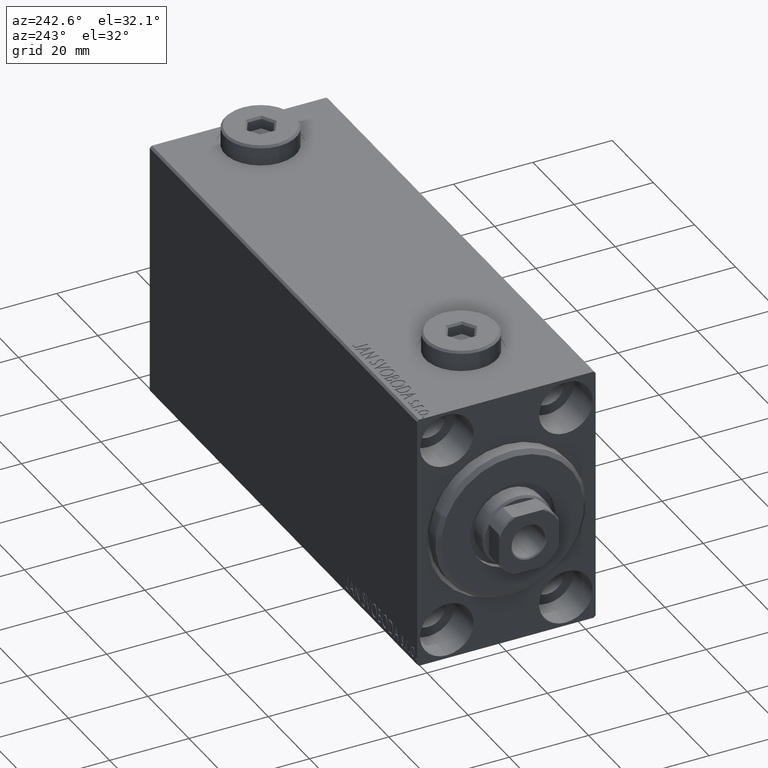
[diagram: clean part render]
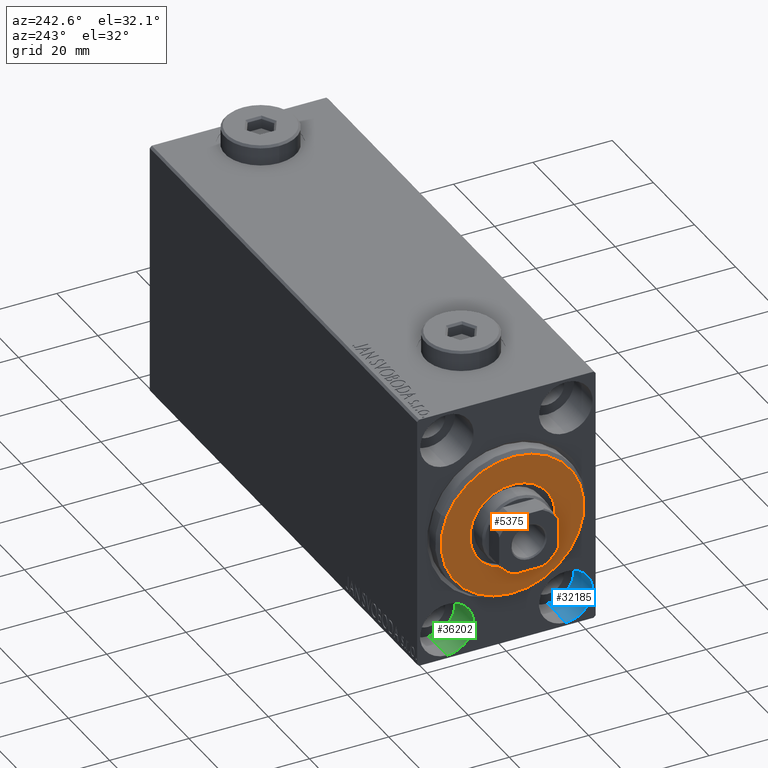
[diagram: same view with three faces highlighted in distinct colors, each labeled with its STEP entity id]
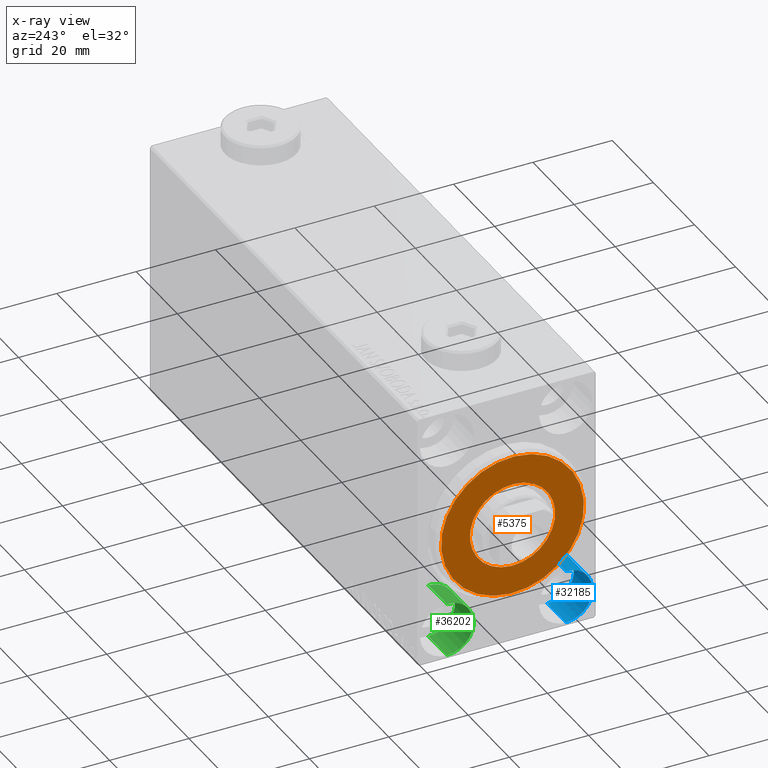
[diagram: x-ray of the same camera — body ghosted, the three highlighted faces saturated]
A machine part, auxiliary view with three faces highlighted in distinct colors.
The next image is the same camera in x-ray (body ghosted, the three faces saturated) — at least one of them is partly hidden behind the body in this view.
Their STEP definitions:

[orange] entity #5375 — the highlighted planar face has unit normal (-1, 0, 0).
#95 = FACE_OUTER_BOUND ( 'NONE', #43795, .T. ) ;
#2303 = AXIS2_PLACEMENT_3D ( 'NONE', #25576, #44238, #33120 ) ;
#2848 = CARTESIAN_POINT ( 'NONE',  ( 3.000000000000000000, 0.000000000000000000, 0.000000000000000000 ) ) ;
#4134 = DIRECTION ( 'NONE',  ( -1.000000000000000000, 0.000000000000000000, -0.000000000000000000 ) ) ;
#4580 = DIRECTION ( 'NONE',  ( 0.000000000000000000, 0.000000000000000000, -1.000000000000000000 ) ) ;
#5006 = ORIENTED_EDGE ( 'NONE', *, *, #8475, .T. ) ;
#5375 = ADVANCED_FACE ( 'NONE', ( #95, #45139 ), #41943, .T. ) ;
#5860 = EDGE_CURVE ( 'NONE', #6107, #22701, #10388, .T. ) ;
#6107 = VERTEX_POINT ( 'NONE', #25377 ) ;
#7115 = CARTESIAN_POINT ( 'NONE',  ( 3.000000000000000000, 0.000000000000000000, 0.000000000000000000 ) ) ;
#7272 = AXIS2_PLACEMENT_3D ( 'NONE', #7115, #4134, #4580 ) ;
#8122 = VERTEX_POINT ( 'NONE', #29784 ) ;
#8475 = EDGE_CURVE ( 'NONE', #8122, #40115, #39647, .T. ) ;
#10329 = CIRCLE ( 'NONE', #2303, 17.99999999999999645 ) ;
#10388 = CIRCLE ( 'NONE', #42494, 10.75000000000000000 ) ;
#12903 = EDGE_CURVE ( 'NONE', #40115, #8122, #10329, .T. ) ;
#14452 = DIRECTION ( 'NONE',  ( -1.000000000000000000, 0.000000000000000000, -0.000000000000000000 ) ) ;
#17377 = ORIENTED_EDGE ( 'NONE', *, *, #5860, .T. ) ;
#18333 = CARTESIAN_POINT ( 'NONE',  ( 3.000000000000000000, 0.000000000000000000, 0.000000000000000000 ) ) ;
#18974 = CARTESIAN_POINT ( 'NONE',  ( 3.000000000000000000, 0.000000000000000000, 0.000000000000000000 ) ) ;
#19204 = DIRECTION ( 'NONE',  ( 0.000000000000000000, 0.000000000000000000, -1.000000000000000000 ) ) ;
#20469 = DIRECTION ( 'NONE',  ( 0.000000000000000000, 0.000000000000000000, -1.000000000000000000 ) ) ;
#20521 = CARTESIAN_POINT ( 'NONE',  ( 3.000000000000000000, 0.000000000000000000, 17.99999999999999645 ) ) ;
#22404 = DIRECTION ( 'NONE',  ( 1.000000000000000000, -0.000000000000000000, 0.000000000000000000 ) ) ;
#22701 = VERTEX_POINT ( 'NONE', #25489 ) ;
#24068 = ORIENTED_EDGE ( 'NONE', *, *, #39622, .T. ) ;
#25377 = CARTESIAN_POINT ( 'NONE',  ( 3.000000000000000000, 0.000000000000000000, 10.75000000000000000 ) ) ;
#25489 = CARTESIAN_POINT ( 'NONE',  ( 3.000000000000000000, 1.316495309083404223E-15, -10.75000000000000000 ) ) ;
#25576 = CARTESIAN_POINT ( 'NONE',  ( 3.000000000000000000, 0.000000000000000000, 0.000000000000000000 ) ) ;
#25792 = AXIS2_PLACEMENT_3D ( 'NONE', #18974, #22404, #19204 ) ;
#28026 = DIRECTION ( 'NONE',  ( 1.000000000000000000, -0.000000000000000000, 0.000000000000000000 ) ) ;
#28635 = DIRECTION ( 'NONE',  ( 0.000000000000000000, 0.000000000000000000, -1.000000000000000000 ) ) ;
#29784 = CARTESIAN_POINT ( 'NONE',  ( 3.000000000000000000, 2.265596578422603002E-15, -17.99999999999999645 ) ) ;
#33120 = DIRECTION ( 'NONE',  ( 0.000000000000000000, 0.000000000000000000, -1.000000000000000000 ) ) ;
#36134 = ORIENTED_EDGE ( 'NONE', *, *, #12903, .T. ) ;
#39431 = EDGE_LOOP ( 'NONE', ( #17377, #24068 ) ) ;
#39622 = EDGE_CURVE ( 'NONE', #22701, #6107, #40140, .T. ) ;
#39647 = CIRCLE ( 'NONE', #25792, 17.99999999999999645 ) ;
#40115 = VERTEX_POINT ( 'NONE', #20521 ) ;
#40140 = CIRCLE ( 'NONE', #7272, 10.75000000000000000 ) ;
#41943 = PLANE ( 'NONE',  #44697 ) ;
#42494 = AXIS2_PLACEMENT_3D ( 'NONE', #18333, #14452, #28635 ) ;
#43795 = EDGE_LOOP ( 'NONE', ( #36134, #5006 ) ) ;
#44238 = DIRECTION ( 'NONE',  ( 1.000000000000000000, -0.000000000000000000, 0.000000000000000000 ) ) ;
#44697 = AXIS2_PLACEMENT_3D ( 'NONE', #2848, #28026, #20469 ) ;
#45139 = FACE_BOUND ( 'NONE', #39431, .T. ) ;

[blue] entity #32185 — the highlighted cylindrical surface (edge-blend (fillet) strip) has radius 6.75 mm, axis along (-1, -0, -0).
#468 = EDGE_CURVE ( 'NONE', #18067, #33244, #19870, .T. ) ;
#680 = VERTEX_POINT ( 'NONE', #20601 ) ;
#1718 = VECTOR ( 'NONE', #40909, 1000.000000000000000 ) ;
#2048 = CARTESIAN_POINT ( 'NONE',  ( 9.000000000000000000, -15.00000000000000355, -25.00000000000000000 ) ) ;
#2432 = EDGE_CURVE ( 'NONE', #680, #17750, #20653, .T. ) ;
#2930 = LINE ( 'NONE', #17343, #1718 ) ;
#5056 = CARTESIAN_POINT ( 'NONE',  ( 9.000000000000000000, -15.00000000000000355, -31.75000000000000000 ) ) ;
#6141 = DIRECTION ( 'NONE',  ( -1.000000000000000000, -0.000000000000000000, -0.000000000000000000 ) ) ;
#7767 = EDGE_LOOP ( 'NONE', ( #22656, #15778, #18682, #24405 ) ) ;
#8011 = CARTESIAN_POINT ( 'NONE',  ( 0.000000000000000000, -15.00000000000000355, -18.25000000000000355 ) ) ;
#10144 = EDGE_CURVE ( 'NONE', #680, #18067, #16031, .T. ) ;
#10286 = CARTESIAN_POINT ( 'NONE',  ( 9.000000000000000000, -15.00000000000000355, -25.00000000000000000 ) ) ;
#10809 = DIRECTION ( 'NONE',  ( -1.000000000000000000, 0.000000000000000000, 0.000000000000000000 ) ) ;
#11702 = DIRECTION ( 'NONE',  ( -1.000000000000000000, -0.000000000000000000, -0.000000000000000000 ) ) ;
#12623 = AXIS2_PLACEMENT_3D ( 'NONE', #10286, #20816, #26805 ) ;
#14740 = AXIS2_PLACEMENT_3D ( 'NONE', #38247, #10809, #42355 ) ;
#15778 = ORIENTED_EDGE ( 'NONE', *, *, #10144, .T. ) ;
#16031 = LINE ( 'NONE', #5056, #22823 ) ;
#17343 = CARTESIAN_POINT ( 'NONE',  ( 9.000000000000000000, -15.00000000000000355, -18.25000000000000355 ) ) ;
#17750 = VERTEX_POINT ( 'NONE', #25623 ) ;
#18041 = EDGE_CURVE ( 'NONE', #17750, #33244, #2930, .T. ) ;
#18067 = VERTEX_POINT ( 'NONE', #31079 ) ;
#18682 = ORIENTED_EDGE ( 'NONE', *, *, #468, .T. ) ;
#19870 = CIRCLE ( 'NONE', #14740, 6.749999999999999112 ) ;
#20601 = CARTESIAN_POINT ( 'NONE',  ( 9.000000000000000000, -15.00000000000000355, -31.75000000000000000 ) ) ;
#20653 = CIRCLE ( 'NONE', #12623, 6.749999999999999112 ) ;
#20816 = DIRECTION ( 'NONE',  ( -1.000000000000000000, 0.000000000000000000, 0.000000000000000000 ) ) ;
#22656 = ORIENTED_EDGE ( 'NONE', *, *, #2432, .F. ) ;
#22823 = VECTOR ( 'NONE', #11702, 1000.000000000000000 ) ;
#23187 = AXIS2_PLACEMENT_3D ( 'NONE', #2048, #6141, #32935 ) ;
#24405 = ORIENTED_EDGE ( 'NONE', *, *, #18041, .F. ) ;
#25623 = CARTESIAN_POINT ( 'NONE',  ( 9.000000000000000000, -15.00000000000000355, -18.25000000000000355 ) ) ;
#26805 = DIRECTION ( 'NONE',  ( 0.000000000000000000, 0.000000000000000000, 1.000000000000000000 ) ) ;
#31079 = CARTESIAN_POINT ( 'NONE',  ( 0.000000000000000000, -15.00000000000000355, -31.75000000000000000 ) ) ;
#32185 = ADVANCED_FACE ( 'NONE', ( #40024 ), #33398, .F. ) ;
#32935 = DIRECTION ( 'NONE',  ( 0.000000000000000000, 0.000000000000000000, 1.000000000000000000 ) ) ;
#33244 = VERTEX_POINT ( 'NONE', #8011 ) ;
#33398 = CYLINDRICAL_SURFACE ( 'NONE', #23187, 6.749999999999999112 ) ;
#38247 = CARTESIAN_POINT ( 'NONE',  ( 0.000000000000000000, -15.00000000000000355, -25.00000000000000000 ) ) ;
#40024 = FACE_OUTER_BOUND ( 'NONE', #7767, .T. ) ;
#40909 = DIRECTION ( 'NONE',  ( -1.000000000000000000, -0.000000000000000000, -0.000000000000000000 ) ) ;
#42355 = DIRECTION ( 'NONE',  ( 0.000000000000000000, 0.000000000000000000, 1.000000000000000000 ) ) ;

[green] entity #36202 — the highlighted cylindrical surface (edge-blend (fillet) strip) has radius 6.75 mm, axis along (-1, -0, -0).
#281 = VECTOR ( 'NONE', #35582, 1000.000000000000000 ) ;
#3425 = ORIENTED_EDGE ( 'NONE', *, *, #45185, .T. ) ;
#3937 = DIRECTION ( 'NONE',  ( -1.000000000000000000, -0.000000000000000000, -0.000000000000000000 ) ) ;
#5016 = VERTEX_POINT ( 'NONE', #28799 ) ;
#5202 = LINE ( 'NONE', #16411, #19885 ) ;
#9290 = EDGE_CURVE ( 'NONE', #43553, #14468, #40520, .T. ) ;
#10134 = DIRECTION ( 'NONE',  ( 0.000000000000000000, 0.000000000000000000, 1.000000000000000000 ) ) ;
#10647 = EDGE_CURVE ( 'NONE', #14468, #38769, #5202, .T. ) ;
#14206 = CARTESIAN_POINT ( 'NONE',  ( 0.000000000000000000, 14.99999999999999645, -18.25000000000000355 ) ) ;
#14468 = VERTEX_POINT ( 'NONE', #36392 ) ;
#15785 = AXIS2_PLACEMENT_3D ( 'NONE', #43068, #35986, #32108 ) ;
#16411 = CARTESIAN_POINT ( 'NONE',  ( 9.000000000000000000, 14.99999999999999645, -18.25000000000000355 ) ) ;
#17394 = DIRECTION ( 'NONE',  ( 0.000000000000000000, 0.000000000000000000, 1.000000000000000000 ) ) ;
#17687 = CARTESIAN_POINT ( 'NONE',  ( 9.000000000000000000, 14.99999999999999645, -25.00000000000000000 ) ) ;
#18980 = EDGE_CURVE ( 'NONE', #43553, #5016, #25087, .T. ) ;
#19885 = VECTOR ( 'NONE', #44300, 1000.000000000000000 ) ;
#21600 = CARTESIAN_POINT ( 'NONE',  ( 9.000000000000000000, 14.99999999999999645, -31.75000000000000000 ) ) ;
#21643 = CARTESIAN_POINT ( 'NONE',  ( 9.000000000000000000, 14.99999999999999645, -31.75000000000000000 ) ) ;
#22071 = ORIENTED_EDGE ( 'NONE', *, *, #18980, .T. ) ;
#24553 = CIRCLE ( 'NONE', #15785, 6.749999999999999112 ) ;
#25087 = LINE ( 'NONE', #21643, #281 ) ;
#26197 = AXIS2_PLACEMENT_3D ( 'NONE', #17687, #3937, #10134 ) ;
#27712 = CARTESIAN_POINT ( 'NONE',  ( 9.000000000000000000, 14.99999999999999645, -25.00000000000000000 ) ) ;
#28799 = CARTESIAN_POINT ( 'NONE',  ( 0.000000000000000000, 14.99999999999999645, -31.75000000000000000 ) ) ;
#29595 = AXIS2_PLACEMENT_3D ( 'NONE', #27712, #34780, #17394 ) ;
#32108 = DIRECTION ( 'NONE',  ( 0.000000000000000000, 0.000000000000000000, 1.000000000000000000 ) ) ;
#34780 = DIRECTION ( 'NONE',  ( -1.000000000000000000, 0.000000000000000000, 0.000000000000000000 ) ) ;
#35582 = DIRECTION ( 'NONE',  ( -1.000000000000000000, -0.000000000000000000, -0.000000000000000000 ) ) ;
#35675 = ORIENTED_EDGE ( 'NONE', *, *, #9290, .F. ) ;
#35986 = DIRECTION ( 'NONE',  ( -1.000000000000000000, 0.000000000000000000, 0.000000000000000000 ) ) ;
#36202 = ADVANCED_FACE ( 'NONE', ( #41464 ), #38026, .F. ) ;
#36392 = CARTESIAN_POINT ( 'NONE',  ( 9.000000000000000000, 14.99999999999999645, -18.25000000000000355 ) ) ;
#38026 = CYLINDRICAL_SURFACE ( 'NONE', #26197, 6.749999999999999112 ) ;
#38769 = VERTEX_POINT ( 'NONE', #14206 ) ;
#40520 = CIRCLE ( 'NONE', #29595, 6.749999999999999112 ) ;
#41464 = FACE_OUTER_BOUND ( 'NONE', #41656, .T. ) ;
#41656 = EDGE_LOOP ( 'NONE', ( #35675, #22071, #3425, #44513 ) ) ;
#43068 = CARTESIAN_POINT ( 'NONE',  ( 0.000000000000000000, 14.99999999999999645, -25.00000000000000000 ) ) ;
#43553 = VERTEX_POINT ( 'NONE', #21600 ) ;
#44300 = DIRECTION ( 'NONE',  ( -1.000000000000000000, -0.000000000000000000, -0.000000000000000000 ) ) ;
#44513 = ORIENTED_EDGE ( 'NONE', *, *, #10647, .F. ) ;
#45185 = EDGE_CURVE ( 'NONE', #5016, #38769, #24553, .T. ) ;